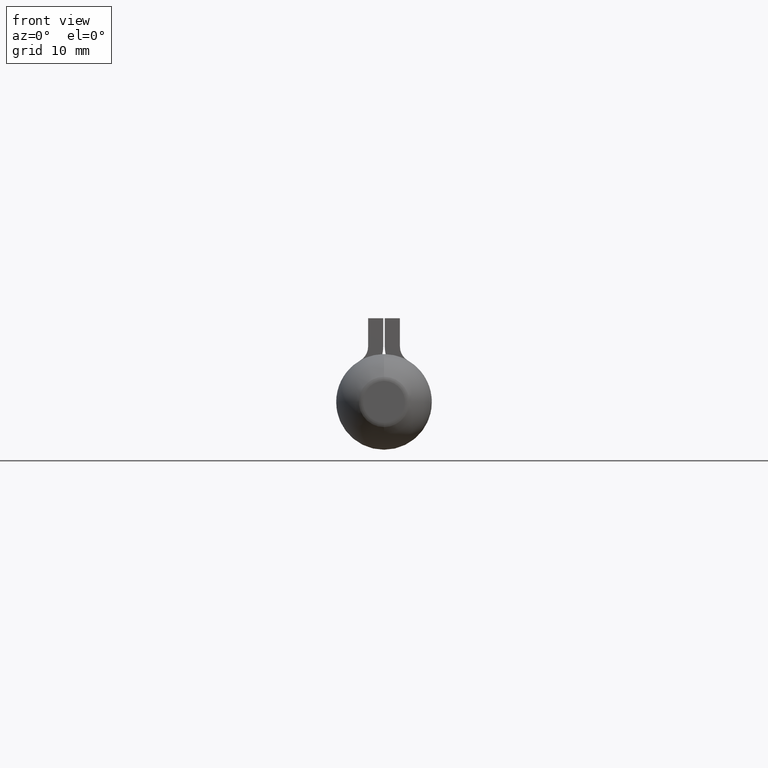
[diagram: clean part render]
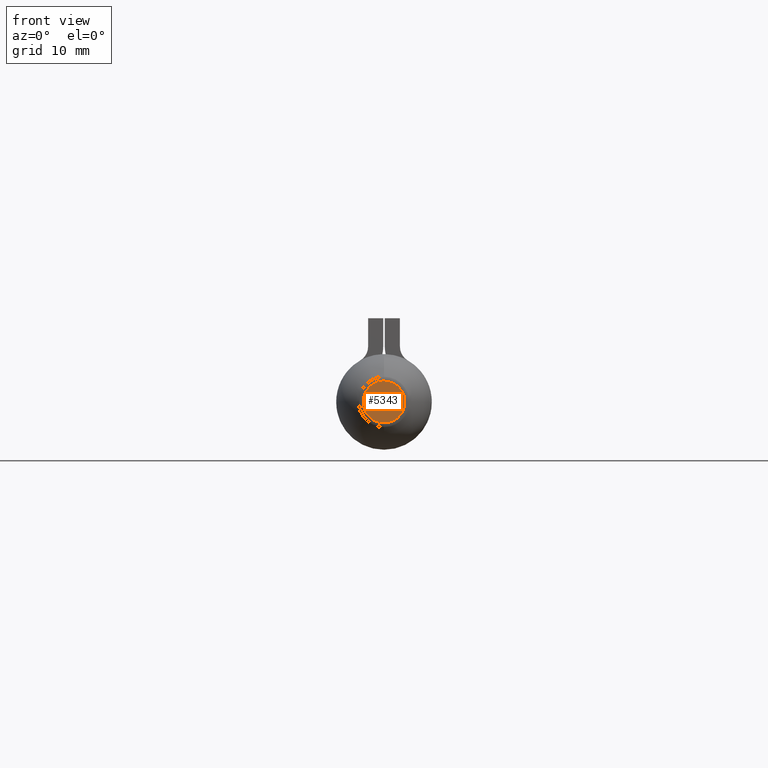
[diagram: same view with one face highlighted and labeled with its STEP entity id]
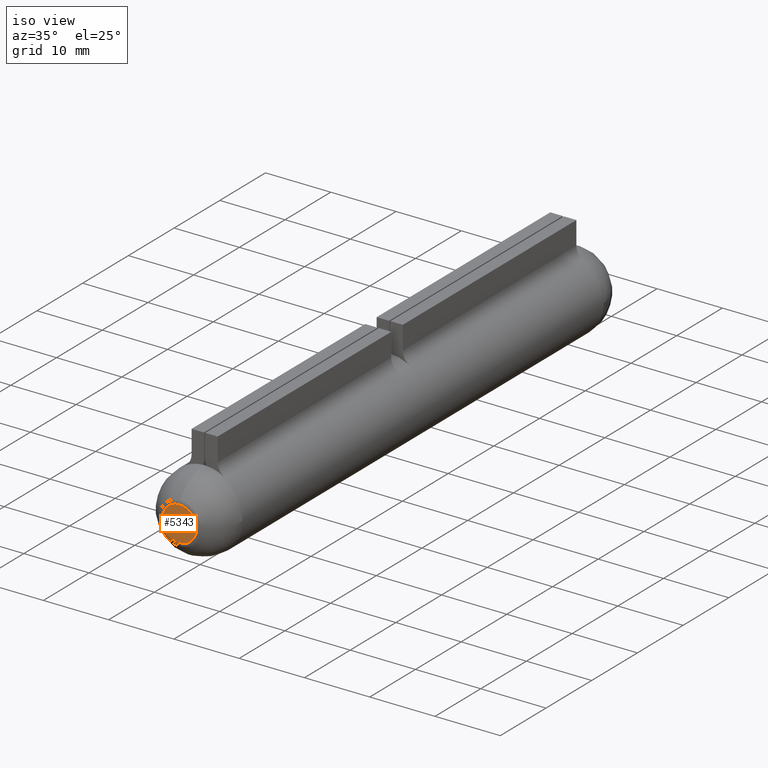
[diagram: same view with one face highlighted and labeled with its STEP entity id]
A machine part, front view. The second image highlights one B-rep face of the part: STEP entity #5343.
A second angle (iso view) of the same face is appended — the face is thin or edge-on in the first view.
In plain terms, the highlighted planar face has unit normal (0, -1, 0).
Its self-contained STEP definition (entity closure, byte-faithful):
#80 = DIRECTION ( 'NONE',  ( 0.000000000000000000, -1.000000000000000000, -0.000000000000000000 ) ) ;
#581 = AXIS2_PLACEMENT_3D ( 'NONE', #8626, #2008, #3090 ) ;
#652 = CIRCLE ( 'NONE', #581, 2.633913438213192126 ) ;
#774 = VERTEX_POINT ( 'NONE', #7322 ) ;
#1156 = EDGE_CURVE ( 'NONE', #774, #13427, #4769, .T. ) ;
#1945 = ORIENTED_EDGE ( 'NONE', *, *, #1156, .T. ) ;
#2008 = DIRECTION ( 'NONE',  ( -0.000000000000000000, -1.000000000000000000, -0.000000000000000000 ) ) ;
#3090 = DIRECTION ( 'NONE',  ( 0.000000000000000000, 0.000000000000000000, -1.000000000000000000 ) ) ;
#3137 = CARTESIAN_POINT ( 'NONE',  ( 0.000000000000000000, -24.49999999999999289, 2.446401256065563279E-16 ) ) ;
#4769 = CIRCLE ( 'NONE', #6216, 2.633913438213192126 ) ;
#5343 = ADVANCED_FACE ( 'NONE', ( #13818 ), #6836, .T. ) ;
#5393 = DIRECTION ( 'NONE',  ( -0.000000000000000000, -1.000000000000000000, -0.000000000000000000 ) ) ;
#6216 = AXIS2_PLACEMENT_3D ( 'NONE', #3137, #5393, #13429 ) ;
#6836 = PLANE ( 'NONE',  #14441 ) ;
#7322 = CARTESIAN_POINT ( 'NONE',  ( 0.000000000000000000, -24.49999999999999289, -2.633913438213191682 ) ) ;
#7356 = CARTESIAN_POINT ( 'NONE',  ( 3.548175027472884888E-16, -24.49999999999999289, 2.633913438213192570 ) ) ;
#7825 = DIRECTION ( 'NONE',  ( 0.000000000000000000, 0.000000000000000000, -1.000000000000000000 ) ) ;
#7868 = EDGE_CURVE ( 'NONE', #13427, #774, #652, .T. ) ;
#8626 = CARTESIAN_POINT ( 'NONE',  ( 0.000000000000000000, -24.49999999999999289, 2.446401256065563279E-16 ) ) ;
#11764 = EDGE_LOOP ( 'NONE', ( #1945, #12992 ) ) ;
#12471 = CARTESIAN_POINT ( 'NONE',  ( 0.000000000000000000, -24.49999999999999289, 0.000000000000000000 ) ) ;
#12992 = ORIENTED_EDGE ( 'NONE', *, *, #7868, .T. ) ;
#13427 = VERTEX_POINT ( 'NONE', #7356 ) ;
#13429 = DIRECTION ( 'NONE',  ( 0.000000000000000000, 0.000000000000000000, -1.000000000000000000 ) ) ;
#13818 = FACE_OUTER_BOUND ( 'NONE', #11764, .T. ) ;
#14441 = AXIS2_PLACEMENT_3D ( 'NONE', #12471, #80, #7825 ) ;